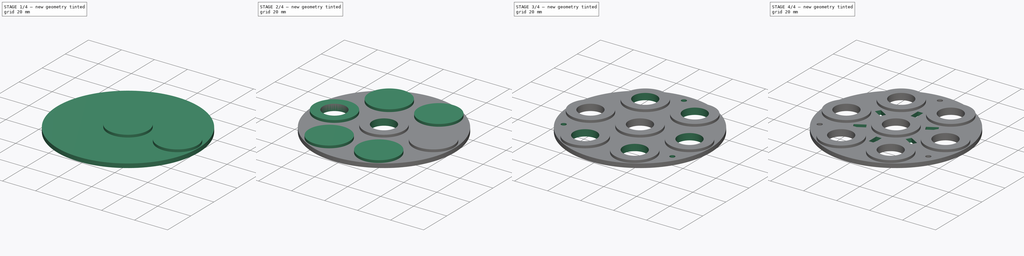
[diagram: build sequence overview — one tinted view per stage of 4, left to right]
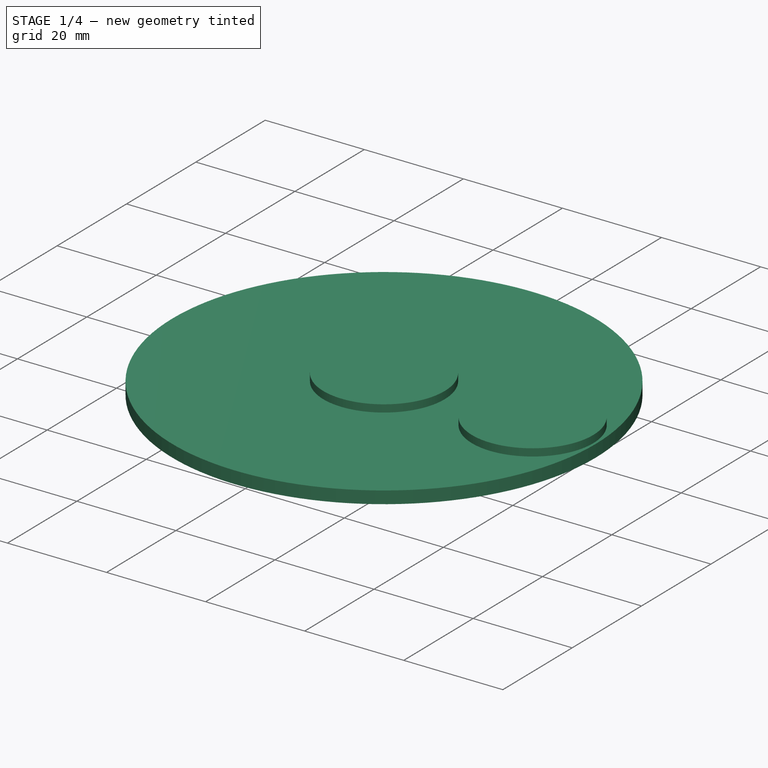
[diagram: stage 1 of 4 — iso view after this stage's code; geometry added in this stage tinted green]
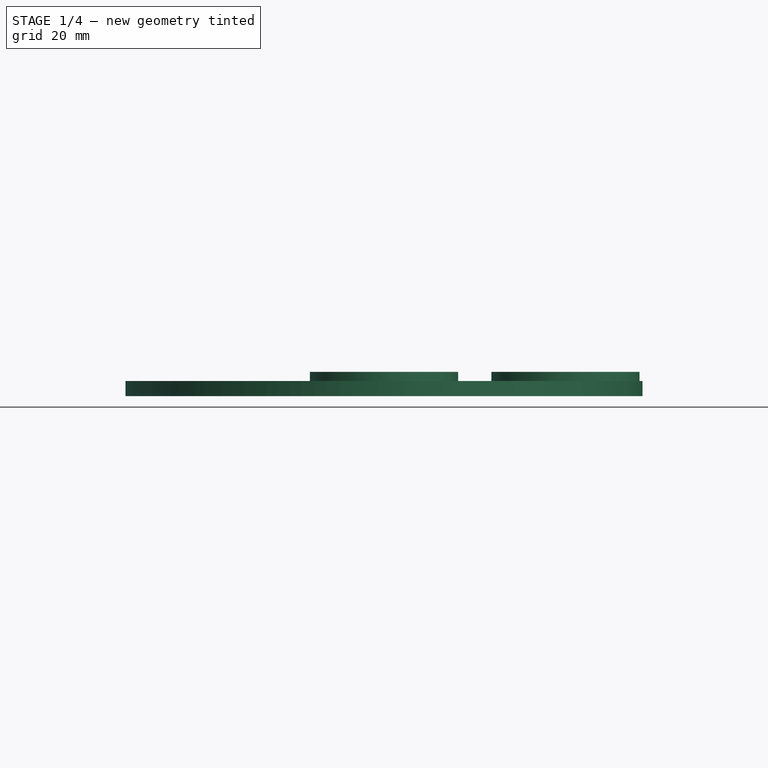
[diagram: stage 1 of 4 — front view after this stage's code; geometry added in this stage tinted green]
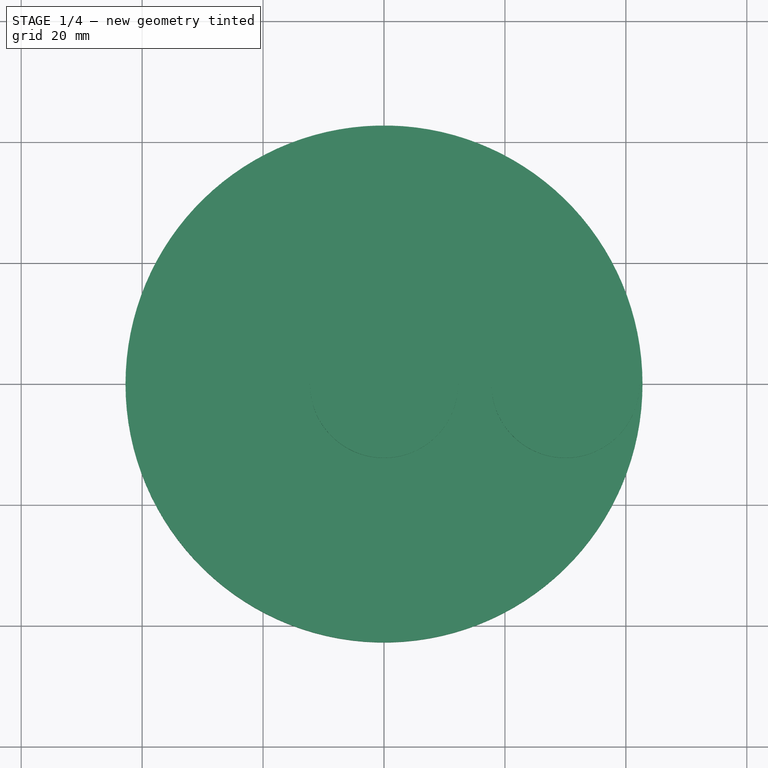
[diagram: stage 1 of 4 — top view after this stage's code; geometry added in this stage tinted green]
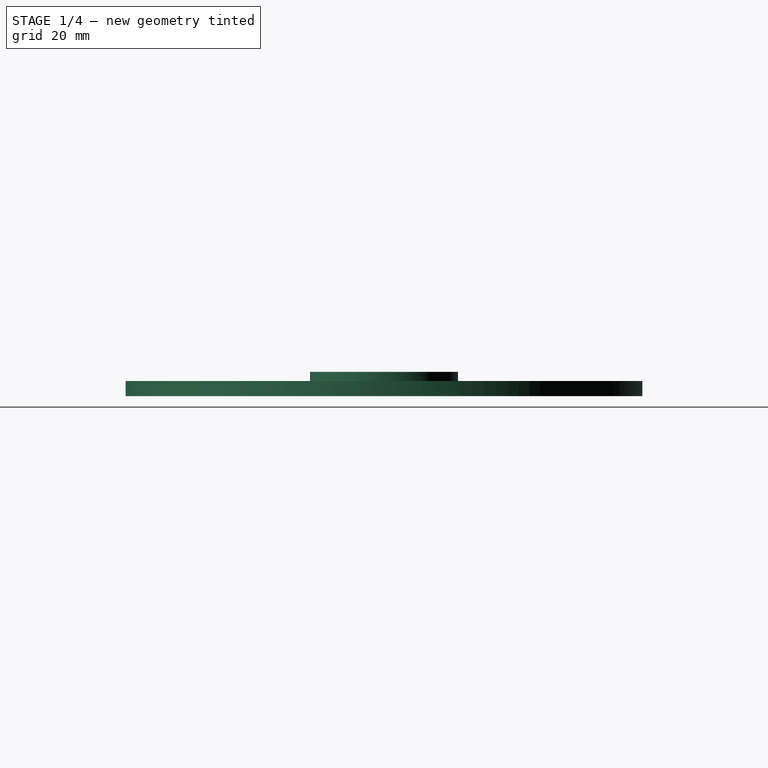
[diagram: stage 1 of 4 — right view after this stage's code; geometry added in this stage tinted green]
FCSTD DOCUMENT  (FreeCAD 1.0R39109 (Git))
Label: 201_etage2_couvercle_base
License: All rights reserved
LicenseURL: https://en.wikipedia.org/wiki/All_rights_reserved
objects: Sketcher::SketchObject×5, PartDesign::Pocket×5, PartDesign::PolarPattern×4, PartDesign::AdditiveCylinder×3, PartDesign::Body×1, App::Part×1
note: 43 computed .brp shape members not serialized (recipe doc carries the construction recipe); baked Part::Feature solids carry a one-line shape summary decoded from their .brp

FEATURE [PartDesign::AdditiveCylinder] Cylinder  label="Bouchon large"
  Angle = 360
  AttacherType = Attacher::AttachEngine3D
  FirstAngle = 0
  Height = 2.5
  Radius = 42.75
  SecondAngle = 0
  Suppressed = false
FEATURE [PartDesign::AdditiveCylinder] Cylinder001  label="Bouchon moteur centre"
  Angle = 360
  AttacherType = Attacher::AttachEngine3D
  BaseFeature = -> Cylinder
  FirstAngle = 0
  Height = 4
  Radius = 12.25
  SecondAngle = 0
  Suppressed = false
FEATURE [PartDesign::AdditiveCylinder] Cylinder002  label="Bouchon moteur externe 1"
  Angle = 360
  AttacherType = Attacher::AttachEngine3D
  AttachmentOffset = pos=(30,0,0) rot=(0,0,1;0rad)
  AttachmentSupport = -> [XY_Plane001]
  BaseFeature = -> Cylinder001
  FirstAngle = 0
  Height = 4
  MapMode = 5
  Placement = pos=(30,0,0) rot=(0,0,1;0rad)
  Radius = 12.25
  SecondAngle = 0
  Suppressed = false
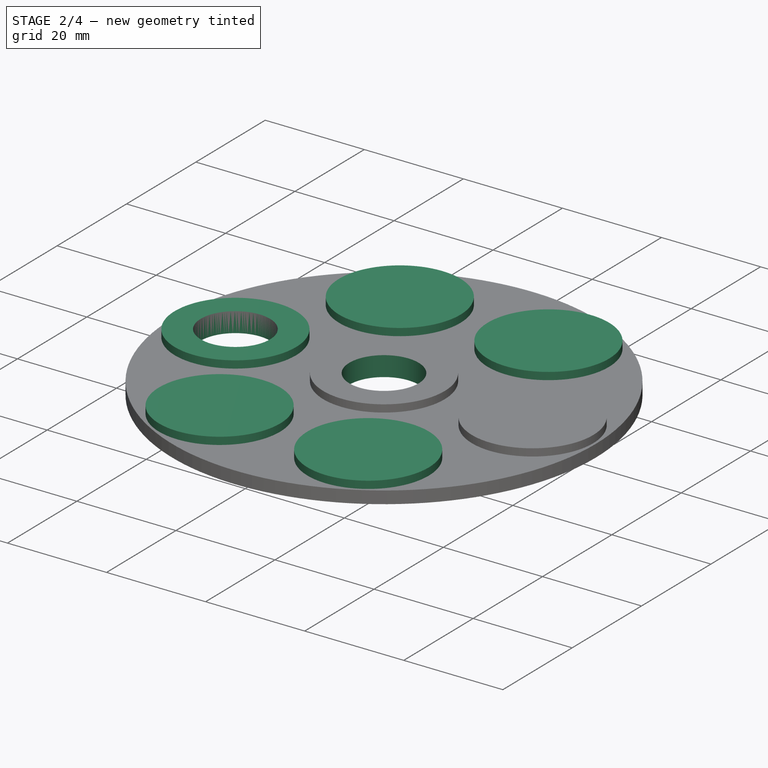
[diagram: stage 2 of 4 — iso view after this stage's code; geometry added in this stage tinted green]
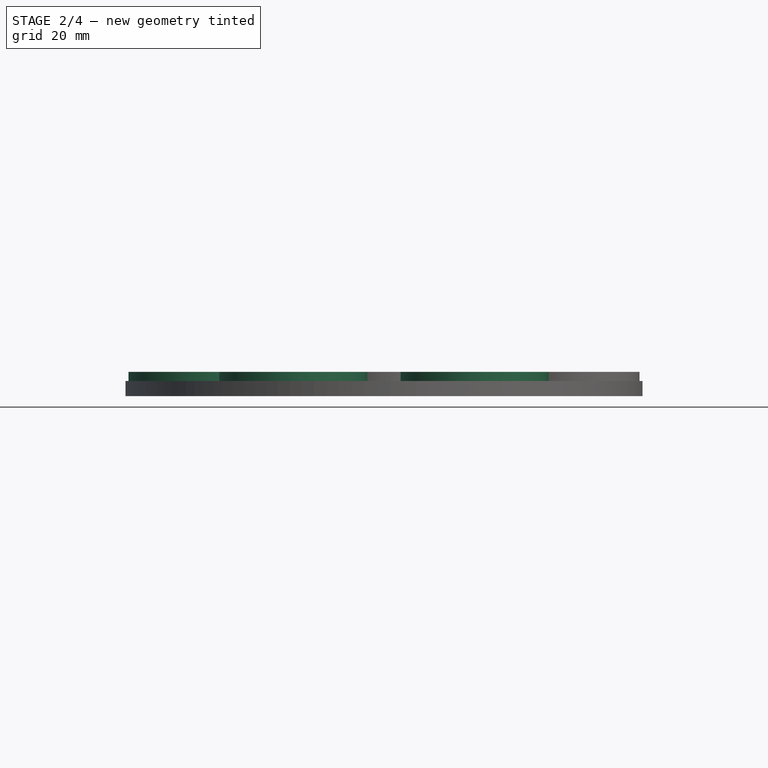
[diagram: stage 2 of 4 — front view after this stage's code; geometry added in this stage tinted green]
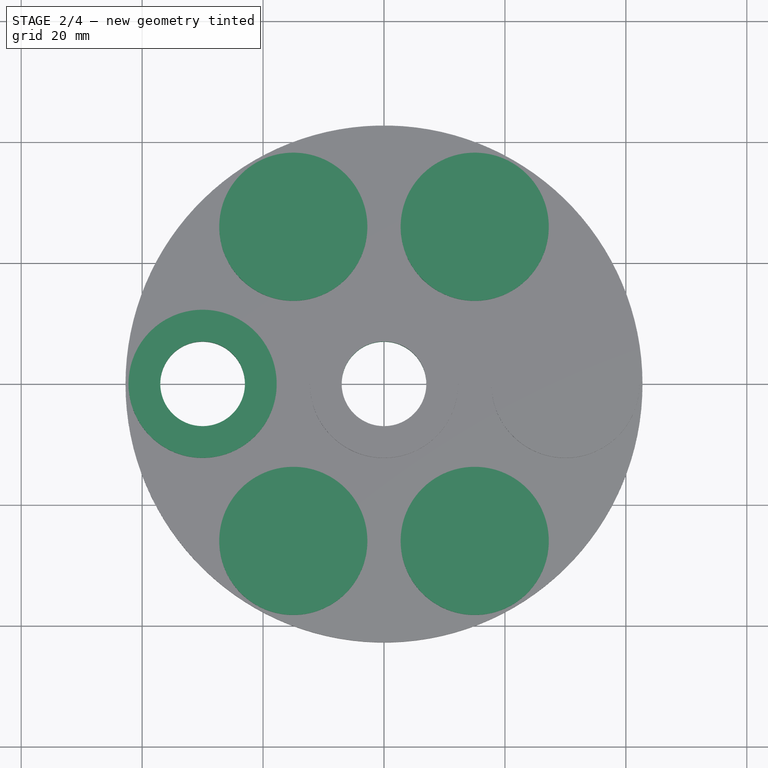
[diagram: stage 2 of 4 — top view after this stage's code; geometry added in this stage tinted green]
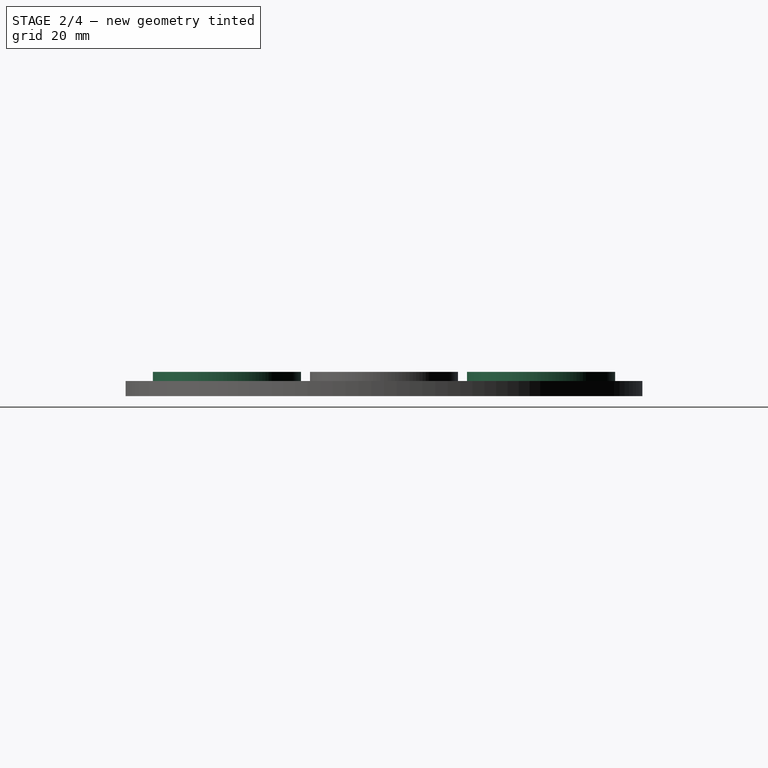
[diagram: stage 2 of 4 — right view after this stage's code; geometry added in this stage tinted green]
FEATURE [PartDesign::PolarPattern] PolarPattern  label="Bouchons moteurs externes"
  Angle = 360
  Axis = -> Z_Axis001
  BaseFeature = -> Cylinder002
  Mode = 0
  Occurrences = 6
  Offset = 120
  Originals = -> [Cylinder002]
  Placement = pos=(30,0,0) rot=(0,0,1;0rad)
  Suppressed = false
  TransformMode = 0
FEATURE [Sketcher::SketchObject] Sketch
  ArcFitTolerance = 0
  AttachmentSupport = -> [XY_Plane001]
  FullyConstrained = true
  MakeInternals = false
  MapMode = 5
  sketch-geometry (1):
    g0: Circle CenterX=0 CenterY=0 CenterZ=0 NormalX=0 NormalY=0 NormalZ=1 AngleXU=0 Radius=7
  constraints (2):
    c: Coincident(g0,g-1)
    c: Radius(g0) = 7
FEATURE [PartDesign::Pocket] Pocket  label="Trou moteur centre"
  BaseFeature = -> PolarPattern
  Direction = (0,0,-1)
  Length = 5
  Length2 = 5
  Placement = pos=(30,0,0) rot=(0,0,1;0rad)
  Profile = -> Sketch
  ReferenceAxis = -> Sketch [N_Axis]
  Reversed = true
  Suppressed = false
  Type = 1
FEATURE [Sketcher::SketchObject] Sketch001
  ArcFitTolerance = 0
  AttachmentSupport = -> [XY_Plane001]
  FullyConstrained = true
  MakeInternals = false
  MapMode = 5
  sketch-geometry (1):
    g0: Circle CenterX=-30 CenterY=0 CenterZ=0 NormalX=0 NormalY=0 NormalZ=1 AngleXU=0 Radius=7
  constraints (3):
    c: PointOnObject(g0,g-1)
    c: DistanceX(g0,g-1) = 30
    c: Radius(g0) = 7
FEATURE [PartDesign::Pocket] Pocket001  label="Trou moteur externe 1"
  BaseFeature = -> Pocket
  Direction = (0,0,-1)
  Length = 5
  Length2 = 5
  Placement = pos=(30,0,0) rot=(0,0,1;0rad)
  Profile = -> Sketch001
  ReferenceAxis = -> Sketch001 [N_Axis]
  Reversed = true
  Suppressed = false
  Type = 1
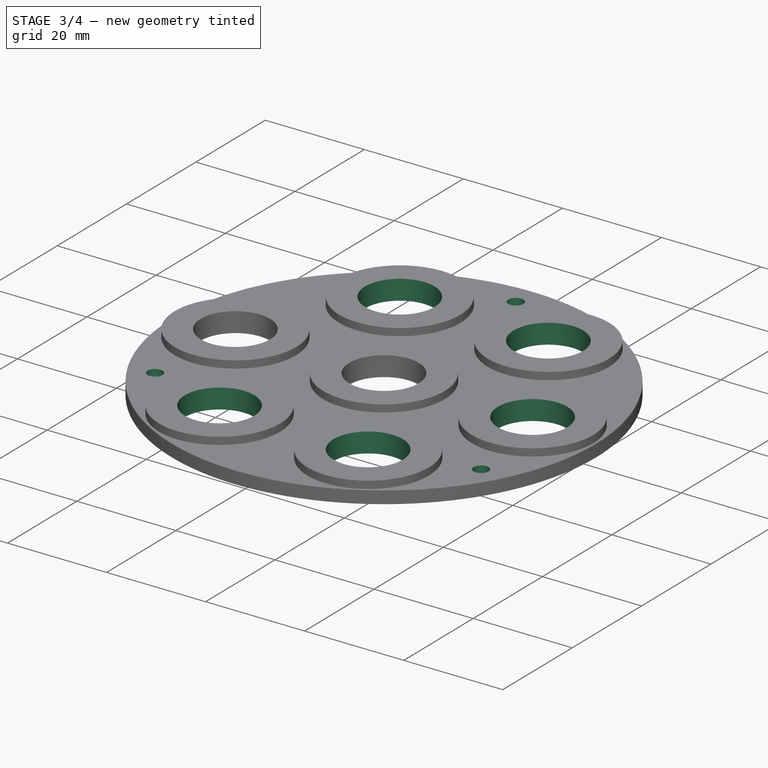
[diagram: stage 3 of 4 — iso view after this stage's code; geometry added in this stage tinted green]
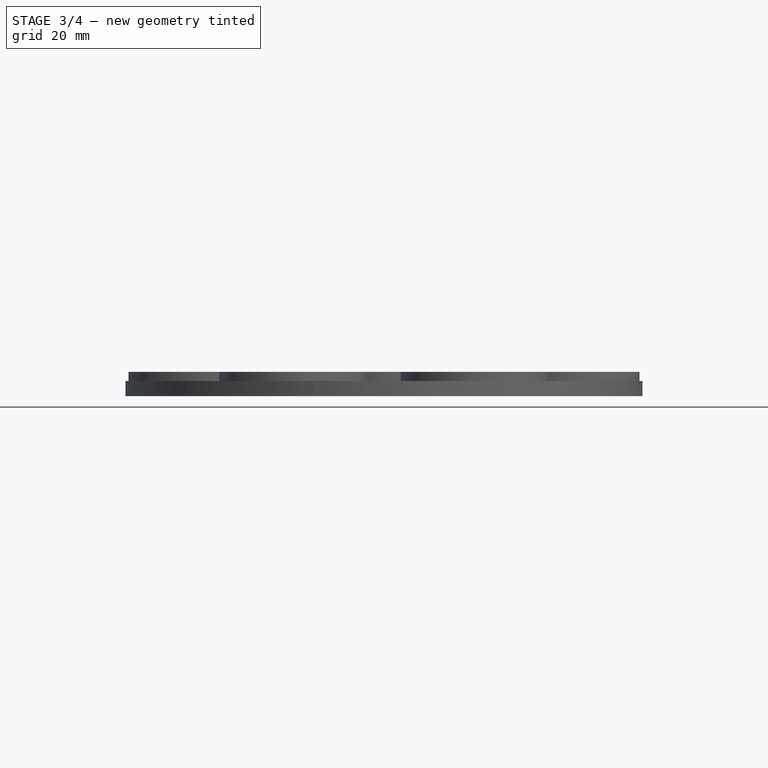
[diagram: stage 3 of 4 — front view after this stage's code; geometry added in this stage tinted green]
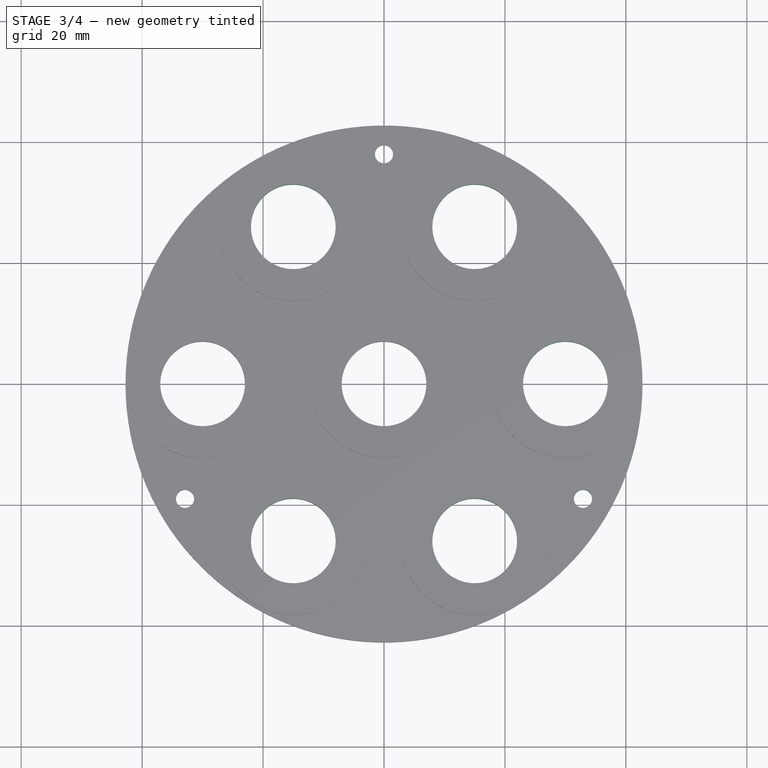
[diagram: stage 3 of 4 — top view after this stage's code; geometry added in this stage tinted green]
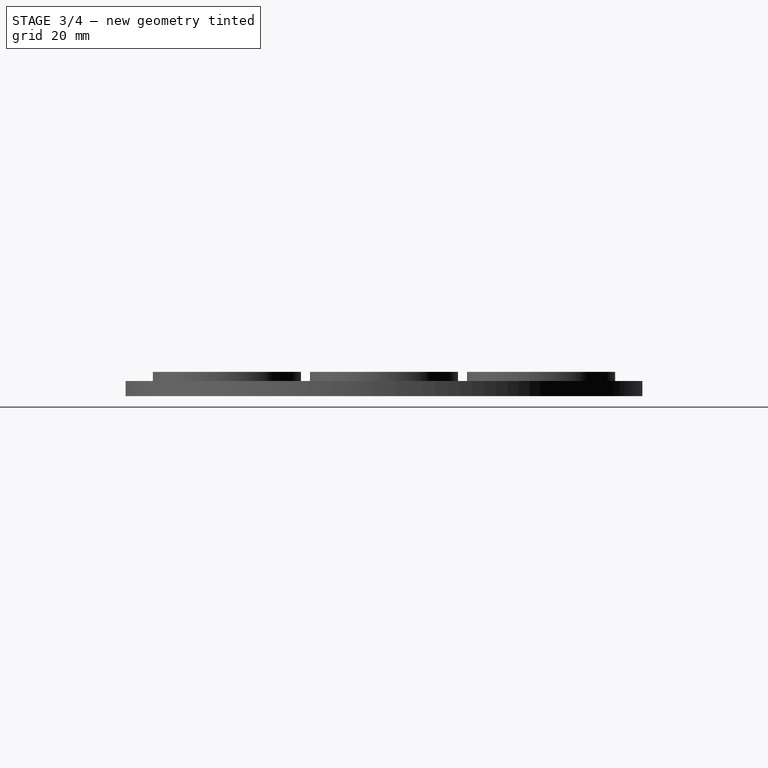
[diagram: stage 3 of 4 — right view after this stage's code; geometry added in this stage tinted green]
FEATURE [PartDesign::PolarPattern] PolarPattern001  label="Trous moteurs externes"
  Angle = 360
  Axis = -> Sketch001 [N_Axis]
  BaseFeature = -> Pocket001
  Mode = 0
  Occurrences = 6
  Offset = 120
  Originals = -> [Pocket001]
  Placement = pos=(30,0,0) rot=(0,0,1;0rad)
  Suppressed = false
  TransformMode = 0
FEATURE [Sketcher::SketchObject] Sketch002
  ArcFitTolerance = 0
  AttachmentSupport = -> [XY_Plane001]
  FullyConstrained = true
  MakeInternals = false
  MapMode = 5
  sketch-geometry (1):
    g0: Circle CenterX=0 CenterY=38 CenterZ=0 NormalX=0 NormalY=0 NormalZ=1 AngleXU=0 Radius=1.5
  constraints (3):
    c: PointOnObject(g0,g-2)
    c: DistanceY(g-1,g0) = 38
    c: Radius(g0) = 1.5
FEATURE [PartDesign::Pocket] Pocket002  label="Trou vis 1"
  BaseFeature = -> PolarPattern001
  Direction = (0,0,-1)
  Length = 5
  Length2 = 5
  Placement = pos=(30,0,0) rot=(0,0,1;0rad)
  Profile = -> Sketch002
  ReferenceAxis = -> Sketch002 [N_Axis]
  Reversed = true
  Suppressed = false
  Type = 1
FEATURE [PartDesign::PolarPattern] PolarPattern002  label="trous vis"
  Angle = 360
  Axis = -> Sketch002 [N_Axis]
  BaseFeature = -> Pocket002
  Mode = 0
  Occurrences = 3
  Offset = 120
  Originals = -> [Pocket002]
  Placement = pos=(30,0,0) rot=(0,0,1;0rad)
  Suppressed = false
  TransformMode = 0
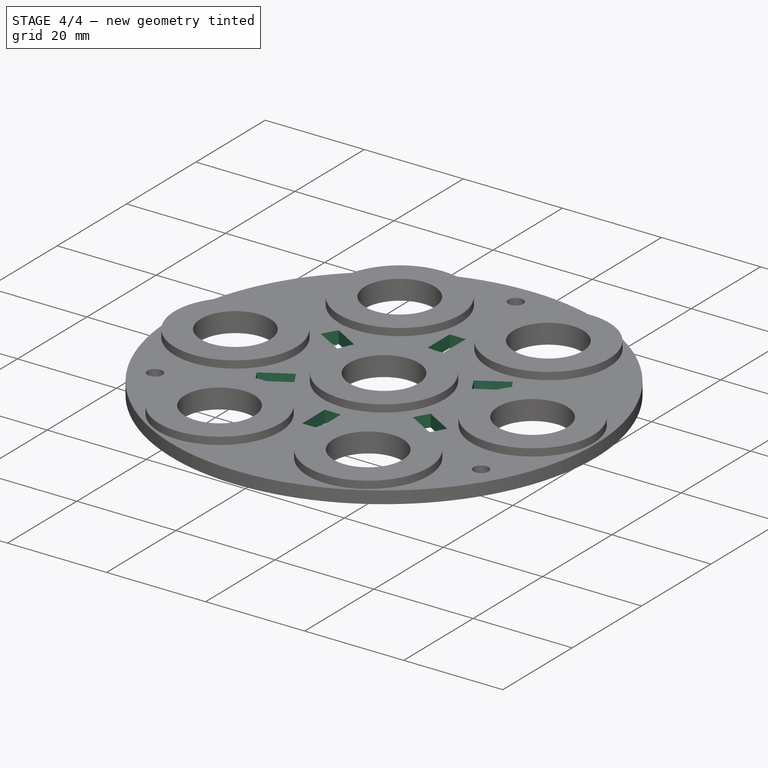
[diagram: stage 4 of 4 — iso view after this stage's code; geometry added in this stage tinted green]
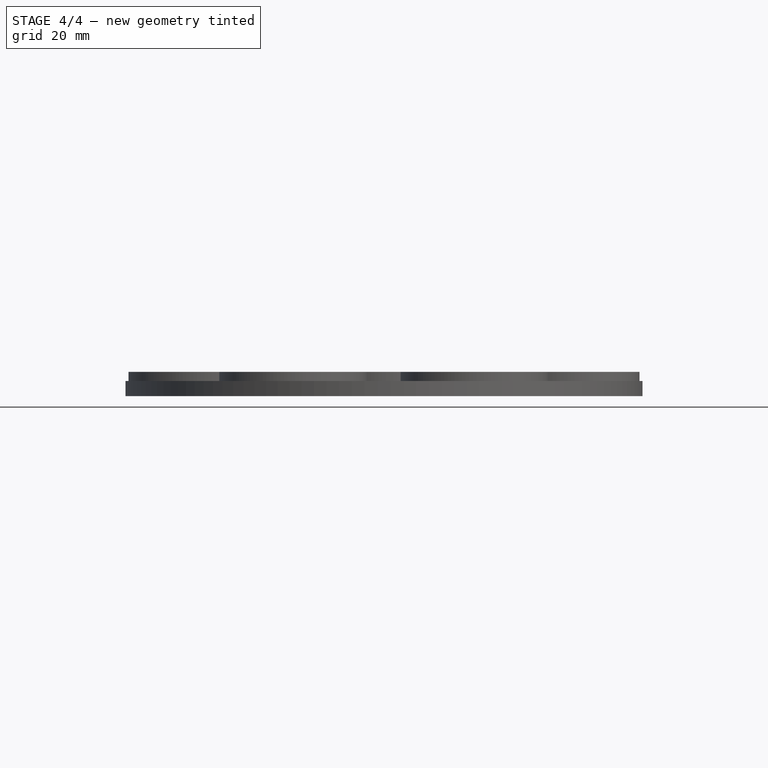
[diagram: stage 4 of 4 — front view after this stage's code; geometry added in this stage tinted green]
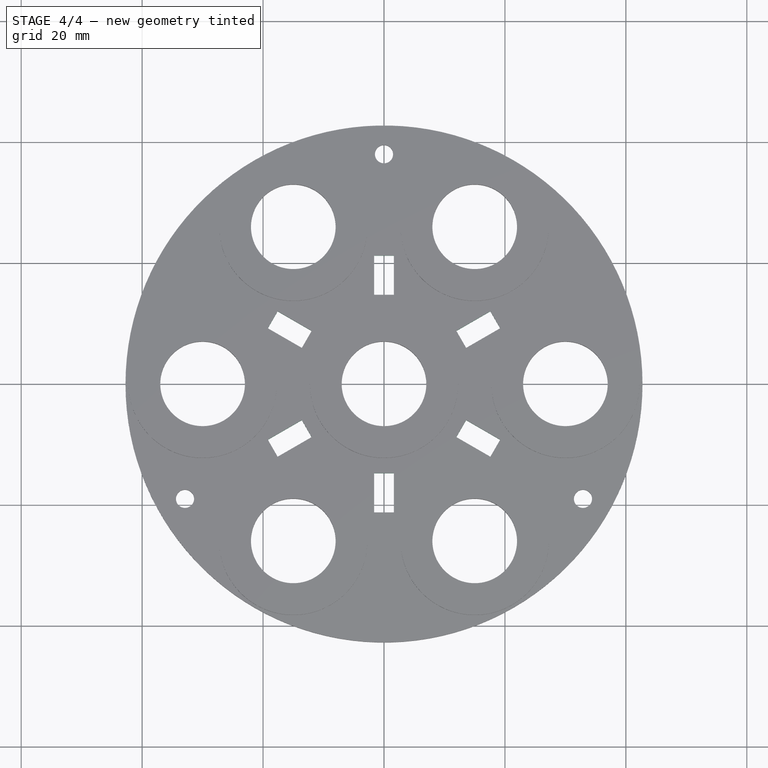
[diagram: stage 4 of 4 — top view after this stage's code; geometry added in this stage tinted green]
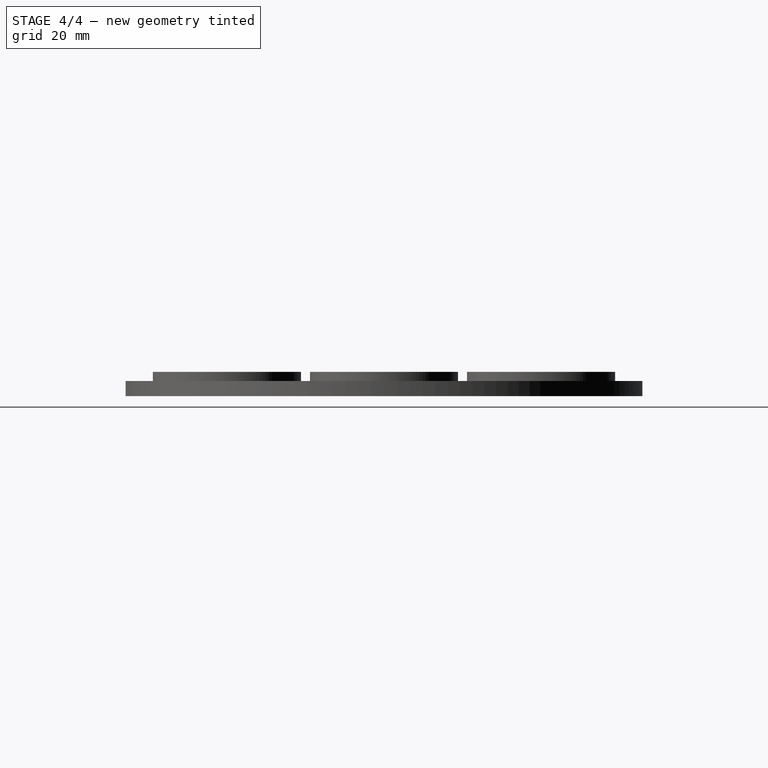
[diagram: stage 4 of 4 — right view after this stage's code; geometry added in this stage tinted green]
FEATURE [Sketcher::SketchObject] Sketch003
  ArcFitTolerance = 0
  AttachmentSupport = -> [XY_Plane001]
  FullyConstrained = true
  MakeInternals = false
  MapMode = 5
  sketch-geometry (5):
    g0: LineSegment StartX=1.625 StartY=14.75 StartZ=0 EndX=1.625 EndY=21.25 EndZ=0
    g1: LineSegment StartX=1.625 StartY=21.25 StartZ=0 EndX=-1.625 EndY=21.25 EndZ=0
    g2: LineSegment StartX=-1.625 StartY=21.25 StartZ=0 EndX=-1.625 EndY=14.75 EndZ=0
    g3: LineSegment StartX=-1.625 StartY=14.75 StartZ=0 EndX=1.625 EndY=14.75 EndZ=0
    g4: GeomPoint [constr] X=0 Y=18 Z=0
  constraints (13):
    c: Coincident(g0,g1)
    c: Coincident(g1,g2)
    c: Coincident(g2,g3)
    c: Coincident(g3,g0)
    c: Horizontal(g1)
    c: Horizontal(g3)
    c: Vertical(g0)
    c: Vertical(g2)
    c: Symmetric(g1,g0,g4)
    c: PointOnObject(g4,g-2)
    c: DistanceY(g-1,g4) = 18
    c: Distance(g1) = 3.25
    c: Distance(g1,g2) = 6.5
FEATURE [PartDesign::Pocket] Pocket003  label="Trou fils"
  BaseFeature = -> PolarPattern002
  Direction = (0,0,-1)
  Length = 5
  Length2 = 5
  Placement = pos=(30,0,0) rot=(0,0,1;0rad)
  Profile = -> Sketch003
  ReferenceAxis = -> Sketch003 [N_Axis]
  Reversed = true
  Suppressed = false
  Type = 1
FEATURE [PartDesign::PolarPattern] PolarPattern003  label="Trous fils"
  Angle = 360
  Axis = -> Sketch003 [N_Axis]
  BaseFeature = -> Pocket003
  Mode = 0
  Occurrences = 6
  Offset = 120
  Originals = -> [Pocket003]
  Placement = pos=(30,0,0) rot=(0,0,1;0rad)
  Suppressed = false
  TransformMode = 0
FEATURE [Sketcher::SketchObject] Sketch004
  ArcFitTolerance = 0
  AttachmentOffset = pos=(24,14,0) rot=(0,0,1;-1.0472rad)
  AttachmentSupport = -> [XY_Plane001]
  FullyConstrained = true
  MakeInternals = false
  MapMode = 5
  Placement = pos=(24,14,0) rot=(0,0,1;5.23599rad)
  sketch-geometry (3):
    g0: LineSegment StartX=2e-16 StartY=0 StartZ=0 EndX=1.5 EndY=6 EndZ=0
    g1: LineSegment StartX=1.5 StartY=6 StartZ=0 EndX=-1.5 EndY=6 EndZ=0
    g2: LineSegment StartX=-1.5 StartY=6 StartZ=0 EndX=2e-16 EndY=0 EndZ=0
  constraints (7):
    c: Coincident(g0,g-1)
    c: Coincident(g1,g0)
    c: Coincident(g2,g1)
    c: Coincident(g2,g0)
    c: Symmetric(g1,g0,g-2)
    c: DistanceX(g1,g1) = 3
    c: DistanceY(g2,g2) = 6
FEATURE [PartDesign::Pocket] Pocket004  label="Marquage"
  BaseFeature = -> PolarPattern003
  Direction = (0,0,-1)
  Length = 2
  Length2 = 5
  Midplane = true
  Placement = pos=(30,0,0) rot=(0,0,1;0rad)
  Profile = -> Sketch004
  ReferenceAxis = -> Sketch004 [N_Axis]
  Suppressed = false
  Type = 0
FEATURE [PartDesign::Body] Body  label="Corps"
  AllowCompound = false
  Group = -> [Cylinder,Cylinder001,Cylinder002,PolarPattern,Sketch,Pocket,Sketch001,Pocket001,PolarPattern001,Sketch002,Pocket002,PolarPattern002,Sketch003,Pocket003,PolarPattern003,Sketch004,Pocket004]
  Origin = -> Origin001
  Tip = -> Pocket004
FEATURE [App::Part] Part
  Group = -> [Body]
  Origin = -> Origin
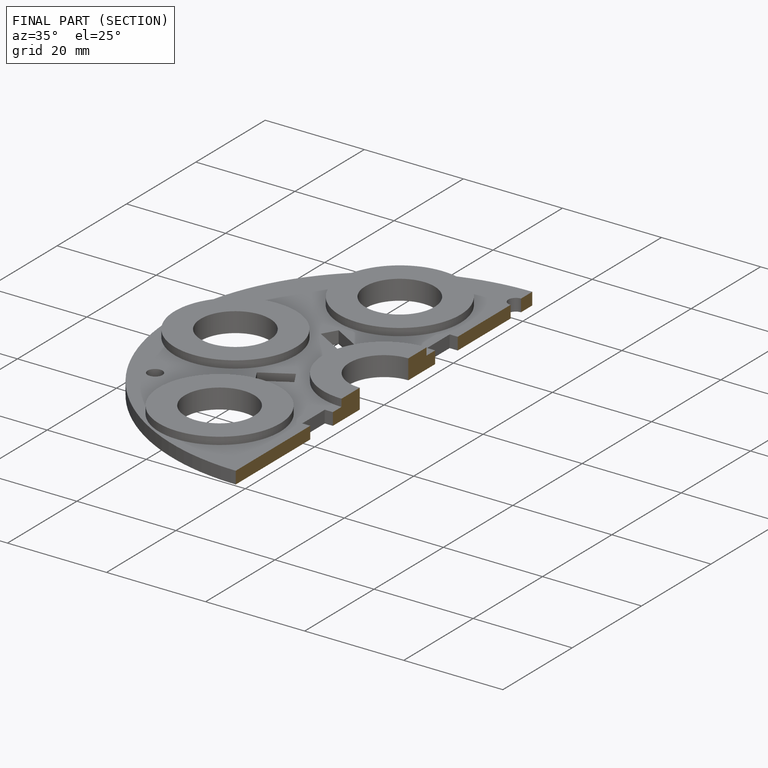
[diagram: finished part — half-section view (interior)]
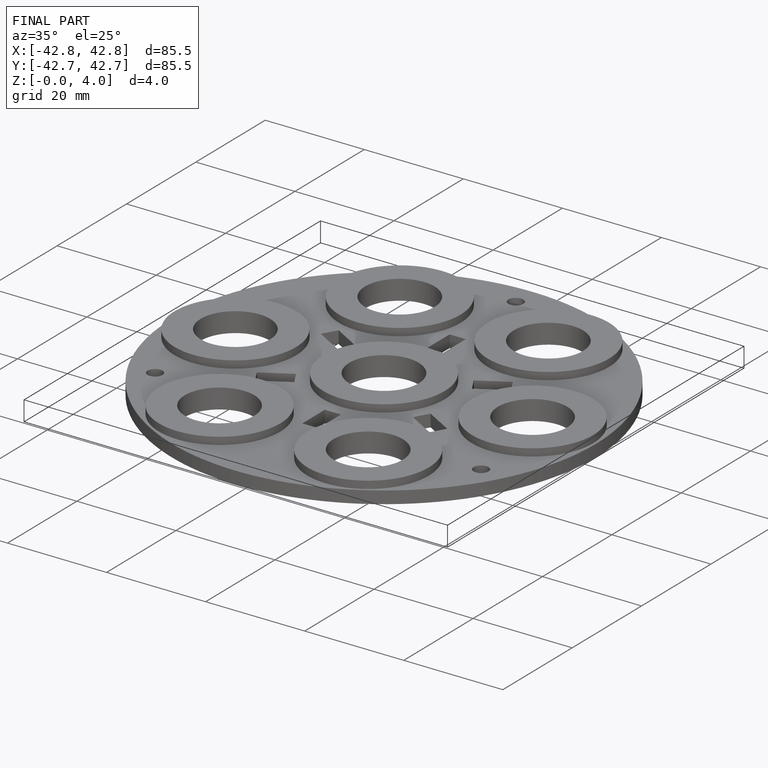
[diagram: finished part — iso view with bounding-box wireframe]
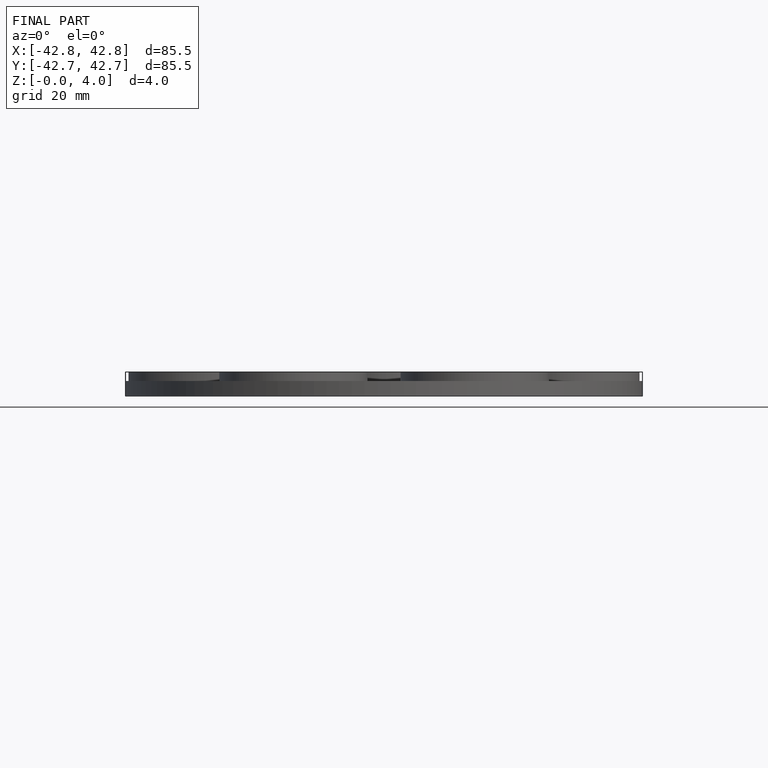
[diagram: finished part — front view with bounding-box wireframe]
